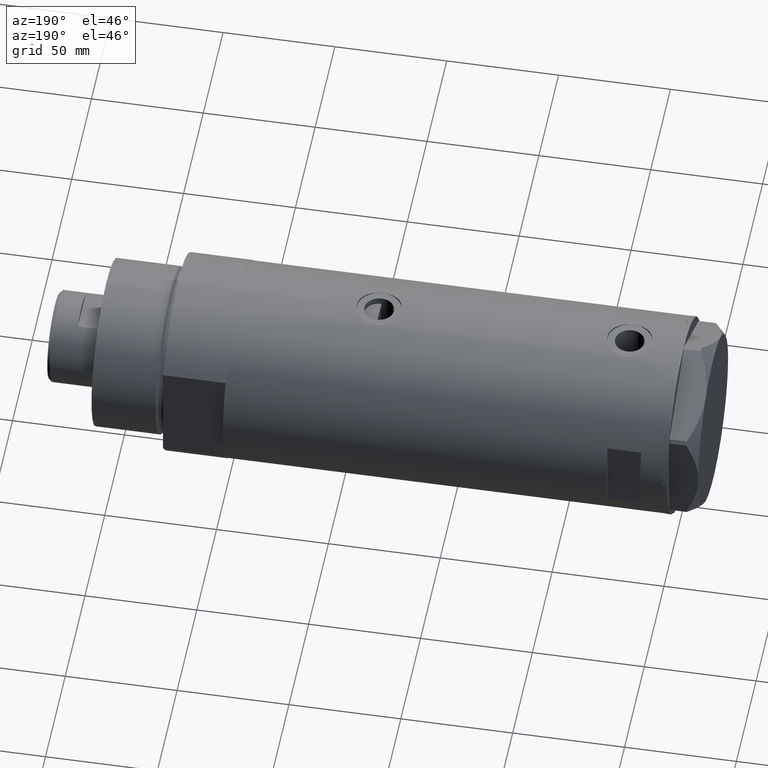
[diagram: clean part render]
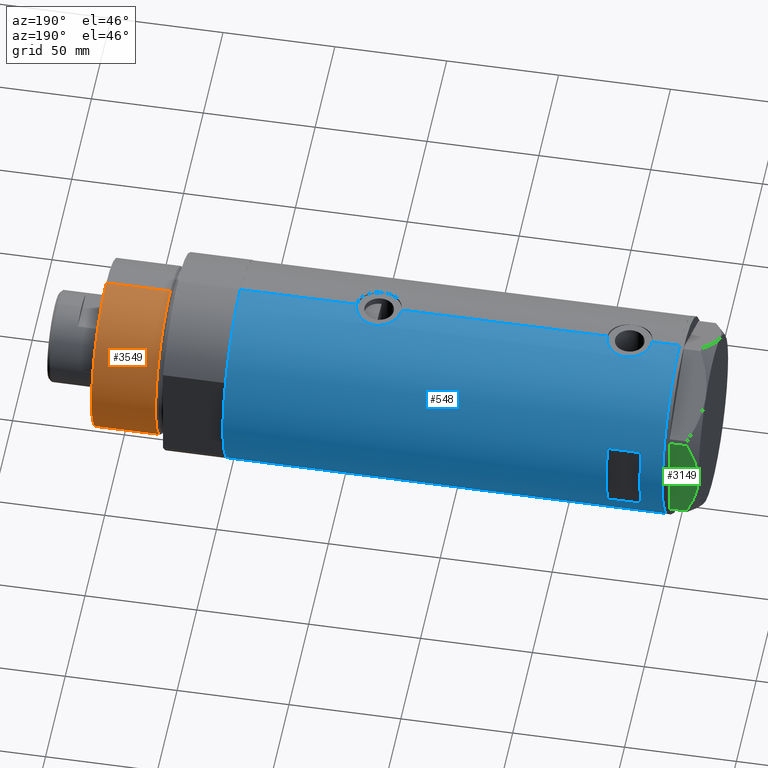
[diagram: same view with three faces highlighted in distinct colors, each labeled with its STEP entity id]
A machine part, auxiliary view with three faces highlighted in distinct colors.
Their STEP definitions:

[orange] entity #3549 — the highlighted cylindrical surface (partial cylindrical patch) has radius 37.5 mm, axis along (-1, -0, 0).
#1 = VECTOR ( 'NONE', #2127, 1000.000000000000000 ) ;
#96 = CYLINDRICAL_SURFACE ( 'NONE', #3648, 37.50000000000000711 ) ;
#368 = AXIS2_PLACEMENT_3D ( 'NONE', #3926, #3854, #2150 ) ;
#413 = CARTESIAN_POINT ( 'NONE',  ( -37.50000000000000711, 0.000000000000000000, 59.89999999999999147 ) ) ;
#499 = ORIENTED_EDGE ( 'NONE', *, *, #2521, .T. ) ;
#593 = VERTEX_POINT ( 'NONE', #413 ) ;
#611 = DIRECTION ( 'NONE',  ( -0.000000000000000000, -0.000000000000000000, -1.000000000000000000 ) ) ;
#630 = CARTESIAN_POINT ( 'NONE',  ( 37.50000000000000711, 4.592425496802575156E-15, 59.89999999999999147 ) ) ;
#1038 = CARTESIAN_POINT ( 'NONE',  ( 37.50000000000000711, 4.592425496802575156E-15, 59.89999999999999147 ) ) ;
#1137 = DIRECTION ( 'NONE',  ( -1.000000000000000000, 0.000000000000000000, 0.000000000000000000 ) ) ;
#1215 = EDGE_CURVE ( 'NONE', #3387, #593, #1767, .T. ) ;
#1767 = CIRCLE ( 'NONE', #368, 37.50000000000000711 ) ;
#1946 = ORIENTED_EDGE ( 'NONE', *, *, #1215, .F. ) ;
#2017 = DIRECTION ( 'NONE',  ( 1.000000000000000000, 0.000000000000000000, 0.000000000000000000 ) ) ;
#2127 = DIRECTION ( 'NONE',  ( -0.000000000000000000, -0.000000000000000000, -1.000000000000000000 ) ) ;
#2130 = DIRECTION ( 'NONE',  ( -0.000000000000000000, -0.000000000000000000, 1.000000000000000000 ) ) ;
#2150 = DIRECTION ( 'NONE',  ( 1.000000000000000000, 0.000000000000000000, 0.000000000000000000 ) ) ;
#2188 = CARTESIAN_POINT ( 'NONE',  ( 37.50000000000000711, 4.592425496802575156E-15, 31.27384048104054415 ) ) ;
#2521 = EDGE_CURVE ( 'NONE', #3387, #3695, #3477, .T. ) ;
#2670 = EDGE_CURVE ( 'NONE', #593, #4209, #3089, .T. ) ;
#2704 = CARTESIAN_POINT ( 'NONE',  ( -37.50000000000000711, 0.000000000000000000, 31.27384048104054415 ) ) ;
#2782 = EDGE_LOOP ( 'NONE', ( #1946, #499, #3844, #3107 ) ) ;
#3089 = LINE ( 'NONE', #3476, #3440 ) ;
#3107 = ORIENTED_EDGE ( 'NONE', *, *, #2670, .F. ) ;
#3256 = FACE_OUTER_BOUND ( 'NONE', #2782, .T. ) ;
#3387 = VERTEX_POINT ( 'NONE', #630 ) ;
#3440 = VECTOR ( 'NONE', #611, 1000.000000000000000 ) ;
#3476 = CARTESIAN_POINT ( 'NONE',  ( -37.50000000000000711, 0.000000000000000000, 59.89999999999999147 ) ) ;
#3477 = LINE ( 'NONE', #1038, #1 ) ;
#3507 = CIRCLE ( 'NONE', #3576, 37.50000000000000711 ) ;
#3549 = ADVANCED_FACE ( 'NONE', ( #3256 ), #96, .T. ) ;
#3576 = AXIS2_PLACEMENT_3D ( 'NONE', #4217, #2130, #2017 ) ;
#3648 = AXIS2_PLACEMENT_3D ( 'NONE', #4349, #4299, #1137 ) ;
#3695 = VERTEX_POINT ( 'NONE', #2188 ) ;
#3844 = ORIENTED_EDGE ( 'NONE', *, *, #4469, .T. ) ;
#3854 = DIRECTION ( 'NONE',  ( 0.000000000000000000, 0.000000000000000000, 1.000000000000000000 ) ) ;
#3926 = CARTESIAN_POINT ( 'NONE',  ( 0.000000000000000000, 0.000000000000000000, 59.89999999999999147 ) ) ;
#4209 = VERTEX_POINT ( 'NONE', #2704 ) ;
#4217 = CARTESIAN_POINT ( 'NONE',  ( 0.000000000000000000, 0.000000000000000000, 31.27384048104054415 ) ) ;
#4299 = DIRECTION ( 'NONE',  ( -0.000000000000000000, -0.000000000000000000, -1.000000000000000000 ) ) ;
#4349 = CARTESIAN_POINT ( 'NONE',  ( 0.000000000000000000, 0.000000000000000000, 59.89999999999999147 ) ) ;
#4469 = EDGE_CURVE ( 'NONE', #3695, #4209, #3507, .T. ) ;

[blue] entity #548 — the highlighted cylindrical surface (partial cylindrical patch) has radius 44 mm, axis along (-1, -0, 0).
#6 = CARTESIAN_POINT ( 'NONE',  ( 44.00000000000002132, 0.6630566900259828866, -46.10000000000002984 ) ) ;
#35 = VECTOR ( 'NONE', #3720, 1000.000000000000000 ) ;
#51 = CARTESIAN_POINT ( 'NONE',  ( 42.99303682946562333, 9.360292926890512177, -39.63424220207205195 ) ) ;
#77 = CIRCLE ( 'NONE', #2585, 44.00000000000000000 ) ;
#78 = CARTESIAN_POINT ( 'NONE',  ( 43.13897484505559987, 8.663345277311671921, -41.10529600060514355 ) ) ;
#87 = CARTESIAN_POINT ( 'NONE',  ( -43.95549163632549750, 2.014511215452028825, -67.83058955704980519 ) ) ;
#101 = LINE ( 'NONE', #753, #4527 ) ;
#128 = CARTESIAN_POINT ( 'NONE',  ( 43.92756755766649235, 2.604528169608121946, -26.42286588097656974 ) ) ;
#136 = CARTESIAN_POINT ( 'NONE',  ( 42.86396777580258544, 9.934664719553397916, 77.21576199026523568 ) ) ;
#141 = CARTESIAN_POINT ( 'NONE',  ( -44.00000000000000000, 4.742435893011557518E-16, 80.45000000000001705 ) ) ;
#144 = ORIENTED_EDGE ( 'NONE', *, *, #2812, .F. ) ;
#158 = CARTESIAN_POINT ( 'NONE',  ( -43.97068415157985299, 1.617901284326948907, -55.85954871699957636 ) ) ;
#162 = CARTESIAN_POINT ( 'NONE',  ( -43.80646232387288563, 4.132500855894024383, 78.90645585403358098 ) ) ;
#173 = DIRECTION ( 'NONE',  ( 0.000000000000000000, 0.000000000000000000, 1.000000000000000000 ) ) ;
#182 = CARTESIAN_POINT ( 'NONE',  ( -43.71901936021025392, 4.969830049220633761, -65.71167637698874842 ) ) ;
#186 = CARTESIAN_POINT ( 'NONE',  ( -43.74805001749254529, 4.711035428619386956, 70.07223935874202425 ) ) ;
#202 = CARTESIAN_POINT ( 'NONE',  ( 44.00000000000000000, -3.917142467416489149E-21, -26.10000000000000497 ) ) ;
#225 = CARTESIAN_POINT ( 'NONE',  ( 43.77939001959705223, 4.442287752090382291, 66.91693822440836925 ) ) ;
#241 = CARTESIAN_POINT ( 'NONE',  ( 0.000000000000000000, 0.000000000000000000, -98.20000000000000284 ) ) ;
#245 = CARTESIAN_POINT ( 'NONE',  ( 43.50382207688846847, 6.605942769308303930, 83.43604688838220795 ) ) ;
#263 = CARTESIAN_POINT ( 'NONE',  ( 43.27871541412905287, 7.937063204555986573, 81.99174997246032603 ) ) ;
#309 = LINE ( 'NONE', #930, #2427 ) ;
#319 = LINE ( 'NONE', #1643, #35 ) ;
#328 = CARTESIAN_POINT ( 'NONE',  ( 43.24261242176996234, 8.130827601038829400, 81.73055186854172405 ) ) ;
#360 = DIRECTION ( 'NONE',  ( 0.000000000000000000, 0.000000000000000000, 1.000000000000000000 ) ) ;
#372 = CARTESIAN_POINT ( 'NONE',  ( 43.46520118248736253, 6.843279251446920064, -43.39898327212166151 ) ) ;
#390 = ORIENTED_EDGE ( 'NONE', *, *, #3769, .F. ) ;
#394 = DIRECTION ( 'NONE',  ( 1.000000000000000000, 0.000000000000000000, 0.000000000000000000 ) ) ;
#415 = ORIENTED_EDGE ( 'NONE', *, *, #1120, .T. ) ;
#417 = CARTESIAN_POINT ( 'NONE',  ( 42.84863276153905787, 9.999733523508369970, -36.75869904750778261 ) ) ;
#425 = CARTESIAN_POINT ( 'NONE',  ( -43.88883895882800346, 3.130924084324098633, -67.31312455748147272 ) ) ;
#442 = CIRCLE ( 'NONE', #1168, 44.00000000000000000 ) ;
#446 = ORIENTED_EDGE ( 'NONE', *, *, #1654, .F. ) ;
#466 = CARTESIAN_POINT ( 'NONE',  ( 43.04652664061919864, 9.111152824375430725, -31.96541990785411969 ) ) ;
#477 = CARTESIAN_POINT ( 'NONE',  ( -43.55386785759471024, 6.249847571481740971, 74.61054947617955690 ) ) ;
#484 = AXIS2_PLACEMENT_3D ( 'NONE', #2975, #3719, #3045 ) ;
#498 = CARTESIAN_POINT ( 'NONE',  ( 43.07641822757289418, 8.969229373860565957, 80.33396235790173989 ) ) ;
#520 = CARTESIAN_POINT ( 'NONE',  ( 42.99303682946563043, 9.360292926890506848, 72.36575779792798357 ) ) ;
#521 = CARTESIAN_POINT ( 'NONE',  ( -43.66575107734169592, 5.414026674167585540, -65.02935088037702371 ) ) ;
#528 = CARTESIAN_POINT ( 'NONE',  ( -43.59867737633045692, 5.931302618788633296, 72.18750504970115855 ) ) ;
#541 = CARTESIAN_POINT ( 'NONE',  ( 43.17277162440354488, 8.493905080221262338, 70.61212964891505806 ) ) ;
#544 = CARTESIAN_POINT ( 'NONE',  ( -43.55382423478827292, 6.250151562062086441, 73.79410470512661391 ) ) ;
#548 = ADVANCED_FACE ( 'NONE', ( #4081, #2344 ), #581, .T. ) ;
#557 = CARTESIAN_POINT ( 'NONE',  ( 43.13962074468733476, 8.660138848900677644, -31.08910258836065665 ) ) ;
#562 = CARTESIAN_POINT ( 'NONE',  ( 42.96879251999280314, 9.470609476412112926, 72.67277100058944939 ) ) ;
#568 = CARTESIAN_POINT ( 'NONE',  ( -43.99417607942194763, 0.8200150578638748522, 80.40936672516741623 ) ) ;
#580 = VERTEX_POINT ( 'NONE', #3144 ) ;
#581 = CYLINDRICAL_SURFACE ( 'NONE', #651, 44.00000000000000000 ) ;
#616 = DIRECTION ( 'NONE',  ( 0.000000000000000000, 0.000000000000000000, 1.000000000000000000 ) ) ;
#651 = AXIS2_PLACEMENT_3D ( 'NONE', #241, #1647, #394 ) ;
#659 = CARTESIAN_POINT ( 'NONE',  ( 43.80640706382536109, 4.134078575915387965, 85.01132821562090669 ) ) ;
#668 = CARTESIAN_POINT ( 'NONE',  ( -44.00000000000000000, 5.388445781992449847E-15, -68.15000000000001990 ) ) ;
#690 = ORIENTED_EDGE ( 'NONE', *, *, #1069, .F. ) ;
#709 = CARTESIAN_POINT ( 'NONE',  ( 43.61291203895919466, 5.829986172017925128, -44.23128710786829743 ) ) ;
#732 = DIRECTION ( 'NONE',  ( 1.000000000000000000, -8.881784197001252323E-16, 0.000000000000000000 ) ) ;
#733 = CARTESIAN_POINT ( 'NONE',  ( -44.00000000000000000, 5.388445916248353619E-15, 98.20000000000000284 ) ) ;
#753 = CARTESIAN_POINT ( 'NONE',  ( 44.00000000000000000, 0.000000000000000000, -98.20000000000000284 ) ) ;
#762 = CARTESIAN_POINT ( 'NONE',  ( -43.83576802966639008, 3.813209221108468938, -66.86865490354712449 ) ) ;
#787 = CARTESIAN_POINT ( 'NONE',  ( -43.55386785759470314, 6.249847571481745412, -61.48945052382045873 ) ) ;
#828 = CARTESIAN_POINT ( 'NONE',  ( 42.92259096922158790, 9.678247830257131312, -33.49994006971207483 ) ) ;
#835 = CARTESIAN_POINT ( 'NONE',  ( 42.96547725528407824, 9.488625330801083280, 79.12450347211071744 ) ) ;
#836 = CARTESIAN_POINT ( 'NONE',  ( -43.97754480947186551, 1.419697478855586059, -55.80996723947924210 ) ) ;
#861 = CARTESIAN_POINT ( 'NONE',  ( -43.62981559643959883, 5.696090409300659019, -64.48051365414528391 ) ) ;
#873 = CIRCLE ( 'NONE', #3471, 44.00000000000000000 ) ;
#876 = CARTESIAN_POINT ( 'NONE',  ( 44.00000000000002132, 0.3269372501759380545, -26.10000000000001918 ) ) ;
#890 = CARTESIAN_POINT ( 'NONE',  ( -43.88968326835893663, 3.132363423941621150, 79.62379232356479974 ) ) ;
#900 = CARTESIAN_POINT ( 'NONE',  ( 43.27871541412904577, 7.937063204555981244, -30.00825002753968107 ) ) ;
#903 = CARTESIAN_POINT ( 'NONE',  ( 43.04663170950395568, 9.110642017076083121, 71.76452497809607678 ) ) ;
#919 = CIRCLE ( 'NONE', #484, 44.00000000000000000 ) ;
#929 = CARTESIAN_POINT ( 'NONE',  ( 43.35257020184194232, 7.523219862841656891, 82.49602554084137296 ) ) ;
#930 = CARTESIAN_POINT ( 'NONE',  ( -15.96871942267132027, 40.99999999999999289, -98.20000000000000284 ) ) ;
#942 = EDGE_CURVE ( 'NONE', #2929, #4059, #2510, .T. ) ;
#1060 = ORIENTED_EDGE ( 'NONE', *, *, #942, .T. ) ;
#1069 = EDGE_CURVE ( 'NONE', #1860, #3044, #309, .T. ) ;
#1072 = CARTESIAN_POINT ( 'NONE',  ( 43.07598348983508174, 8.971306953823013686, -40.52969423187187914 ) ) ;
#1091 = VECTOR ( 'NONE', #4223, 1000.000000000000000 ) ;
#1095 = CARTESIAN_POINT ( 'NONE',  ( 42.96879251999280314, 9.470609476412120031, -39.32722899941056482 ) ) ;
#1098 = DIRECTION ( 'NONE',  ( 0.000000000000000000, 0.000000000000000000, 1.000000000000000000 ) ) ;
#1120 = EDGE_CURVE ( 'NONE', #4243, #580, #442, .T. ) ;
#1134 = CARTESIAN_POINT ( 'NONE',  ( -44.00000000000000000, 5.388445781982983516E-15, 67.95000000000001705 ) ) ;
#1152 = ORIENTED_EDGE ( 'NONE', *, *, #1471, .F. ) ;
#1168 = AXIS2_PLACEMENT_3D ( 'NONE', #4466, #2719, #2020 ) ;
#1172 = CARTESIAN_POINT ( 'NONE',  ( 43.50265731352001808, 6.601850423195591233, 68.38180832701048928 ) ) ;
#1173 = CARTESIAN_POINT ( 'NONE',  ( -43.58221825186232223, 6.049526113783029402, -63.52262970817960763 ) ) ;
#1179 = CARTESIAN_POINT ( 'NONE',  ( -43.95446647384543581, 2.010857111636599637, 80.12124226363938817 ) ) ;
#1184 = EDGE_CURVE ( 'NONE', #3472, #2164, #4187, .T. ) ;
#1191 = CARTESIAN_POINT ( 'NONE',  ( 43.71454618729809738, 5.012329428678962806, -27.44063025941690270 ) ) ;
#1199 = CARTESIAN_POINT ( 'NONE',  ( -43.74833112883975872, 4.708208586952008723, -57.76949616491121731 ) ) ;
#1239 = CARTESIAN_POINT ( 'NONE',  ( 43.98169492814103876, 1.310824514239766536, -26.18080219619315585 ) ) ;
#1244 = CARTESIAN_POINT ( 'NONE',  ( -15.96871942267132027, 40.99999999999999289, 73.20000000000000284 ) ) ;
#1254 = CARTESIAN_POINT ( 'NONE',  ( -43.87596296923810968, 3.305851531861728976, 68.89196414123739487 ) ) ;
#1265 = CARTESIAN_POINT ( 'NONE',  ( 43.50382207688846847, 6.605942769308304818, -28.56395311161779915 ) ) ;
#1270 = CARTESIAN_POINT ( 'NONE',  ( 44.00000000000002132, 0.6630566900259825536, 65.90000000000003411 ) ) ;
#1279 = CARTESIAN_POINT ( 'NONE',  ( -44.00000000000000000, 4.742435893011557518E-16, 80.45000000000001705 ) ) ;
#1297 = EDGE_CURVE ( 'NONE', #3044, #2609, #77, .T. ) ;
#1313 = DIRECTION ( 'NONE',  ( 0.000000000000000000, 0.000000000000000000, 1.000000000000000000 ) ) ;
#1322 = B_SPLINE_CURVE_WITH_KNOTS ( 'NONE', 3,
 ( #1904, #4284, #4000, #836, #158, #3268, #3977, #1502, #2921, #2228, #2252, #1199, #3686, #3636, #1553, #1879, #2617, #3293, #1931, #2943, #2901, #787, #2646, #4336, #1173, #4025, #861, #2177, #521, #3341, #182, #2549, #4392, #762, #3588, #425, #1828, #3247, #87, #1481, #3132, #2039, #668 ),
 .UNSPECIFIED., .F., .F.,
 ( 4, 2, 2, 2, 2, 2, 2, 2, 1, 2, 2, 2, 2, 2, 2, 2, 2, 2, 2, 2, 2, 4 ),
 ( 6.289190293195367850E-19, 0.001222818171749683351, 0.001834227257624524918, 0.002445636343499366702, 0.003668454515249052871, 0.004891272686998739475, 0.006114090858748426512, 0.006725499944623267862, 0.007336909030498110947, 0.007948318116372952297, 0.008559727202247794514, 0.009782545373997478949, 0.01100536354574716165, 0.01222818171749684782, 0.01283959080337170912, 0.01345099988924656868, 0.01467381806099629128, 0.01589663623274601215, 0.01650804531862087518, 0.01711945440449573475, 0.01834227257624545734, 0.01956509074799518341 ),
 .UNSPECIFIED. ) ;
#1366 = CARTESIAN_POINT ( 'NONE',  ( -44.00000000000000000, 5.388445781992449847E-15, -68.15000000000001990 ) ) ;
#1373 = CARTESIAN_POINT ( 'NONE',  ( 0.000000000000000000, 0.000000000000000000, 88.20000000000000284 ) ) ;
#1397 = CARTESIAN_POINT ( 'NONE',  ( 43.94229162222111285, 2.275476993733913655, -45.84314464222307350 ) ) ;
#1416 = CARTESIAN_POINT ( 'NONE',  ( 43.27822890220284080, 7.945655169171516263, -42.20725383289290278 ) ) ;
#1448 = EDGE_LOOP ( 'NONE', ( #690, #390, #3910, #1998 ) ) ;
#1455 = VECTOR ( 'NONE', #2297, 1000.000000000000000 ) ;
#1465 = VECTOR ( 'NONE', #1098, 1000.000000000000000 ) ;
#1471 = EDGE_CURVE ( 'NONE', #4238, #2075, #873, .T. ) ;
#1477 = B_SPLINE_CURVE_WITH_KNOTS ( 'NONE', 3,
 ( #141, #2312, #568, #3693, #3016, #1179, #1976, #3345, #890, #3367, #162, #3298, #4396, #2672, #3321, #2598, #4073, #2328, #1557, #1578, #3388, #477, #544, #4362, #1955, #528, #1884, #1530, #2948, #2287, #1935, #186, #2648, #4415, #1254, #3735, #4341, #4003, #2257, #2361, #2399, #4474, #4113 ),
 .UNSPECIFIED., .F., .F.,
 ( 4, 2, 2, 2, 2, 2, 2, 2, 1, 2, 2, 2, 2, 2, 2, 2, 2, 2, 2, 2, 2, 4 ),
 ( 4.607873388256435088E-19, 0.001222818171749670340, 0.001834227257624505619, 0.002445636343499341114, 0.003668454515249027284, 0.004891272686998713454, 0.006114090858748398756, 0.006725499944623259188, 0.007336909030498119620, 0.007948318116372978318, 0.008559727202247837882, 0.009782545373997518848, 0.01100536354574719981, 0.01222818171749687904, 0.01283959080337173861, 0.01345099988924659644, 0.01467381806099631383, 0.01589663623274603296, 0.01650804531862088906, 0.01711945440449574862, 0.01834227257624546428, 0.01956509074799517994 ),
 .UNSPECIFIED. ) ;
#1481 = CARTESIAN_POINT ( 'NONE',  ( -43.97181775256600389, 1.624866278047417012, -67.94892918385096436 ) ) ;
#1502 = CARTESIAN_POINT ( 'NONE',  ( -43.91413175532568403, 2.773555030353458850, -56.28415761633254277 ) ) ;
#1524 = CARTESIAN_POINT ( 'NONE',  ( 42.92259096922160211, 9.678247830257127760, 78.50005993028796070 ) ) ;
#1530 = CARTESIAN_POINT ( 'NONE',  ( -43.64133398152736021, 5.607447751852152606, 71.43213954987568570 ) ) ;
#1539 = VECTOR ( 'NONE', #173, 1000.000000000000000 ) ;
#1552 = CARTESIAN_POINT ( 'NONE',  ( 43.17306590853067405, 8.492365194390513849, 81.19012532693457729 ) ) ;
#1553 = CARTESIAN_POINT ( 'NONE',  ( -43.66555354895123031, 5.415612800338319488, -58.77343642822444281 ) ) ;
#1557 = CARTESIAN_POINT ( 'NONE',  ( -43.58362292239462477, 6.039157555656595733, 75.82263578448043972 ) ) ;
#1562 = EDGE_CURVE ( 'NONE', #580, #1730, #1984, .T. ) ;
#1578 = CARTESIAN_POINT ( 'NONE',  ( -43.57657963456318839, 6.089610171536606664, 75.62178539580813208 ) ) ;
#1589 = DIRECTION ( 'NONE',  ( 1.000000000000000000, 0.000000000000000000, 0.000000000000000000 ) ) ;
#1643 = CARTESIAN_POINT ( 'NONE',  ( 15.96871942267132027, 40.99999999999999289, -98.20000000000000284 ) ) ;
#1647 = DIRECTION ( 'NONE',  ( 0.000000000000000000, 0.000000000000000000, 1.000000000000000000 ) ) ;
#1654 = EDGE_CURVE ( 'NONE', #1856, #4238, #2633, .T. ) ;
#1720 = CARTESIAN_POINT ( 'NONE',  ( 44.00000000000000711, 0.3269372501759374994, 85.90000000000001990 ) ) ;
#1730 = VERTEX_POINT ( 'NONE', #1366 ) ;
#1763 = VECTOR ( 'NONE', #360, 1000.000000000000000 ) ;
#1772 = CARTESIAN_POINT ( 'NONE',  ( 43.35294442506074120, 7.532526048221052761, -42.70935414491112425 ) ) ;
#1828 = CARTESIAN_POINT ( 'NONE',  ( -43.91315028150559385, 2.769134003554746037, -67.50682619375406546 ) ) ;
#1856 = VERTEX_POINT ( 'NONE', #4408 ) ;
#1860 = VERTEX_POINT ( 'NONE', #1244 ) ;
#1878 = CARTESIAN_POINT ( 'NONE',  ( 43.46520118248735542, 6.843279251446916511, 68.60101672787835980 ) ) ;
#1879 = CARTESIAN_POINT ( 'NONE',  ( -43.64122538274736485, 5.608286354294326870, -59.13388613036661212 ) ) ;
#1884 = CARTESIAN_POINT ( 'NONE',  ( -43.62981559643959883, 5.696090409300652802, 71.61948634585476725 ) ) ;
#1897 = CARTESIAN_POINT ( 'NONE',  ( 43.39051256276903246, 7.301963662770314833, -29.25975531787057804 ) ) ;
#1903 = CARTESIAN_POINT ( 'NONE',  ( 43.88297407487991109, 3.222431612395379119, 66.42771797970659975 ) ) ;
#1904 = CARTESIAN_POINT ( 'NONE',  ( -44.00000000000000000, 6.472851849715296073E-16, -55.65000000000000568 ) ) ;
#1924 = CARTESIAN_POINT ( 'NONE',  ( 43.77712723341632284, 4.432620652875501222, -27.13004990240029457 ) ) ;
#1931 = CARTESIAN_POINT ( 'NONE',  ( -43.58362292239463187, 6.039157555656604615, -60.27736421551959722 ) ) ;
#1935 = CARTESIAN_POINT ( 'NONE',  ( -43.71901936021023971, 4.969830049220626655, 70.38832362301124590 ) ) ;
#1951 = CARTESIAN_POINT ( 'NONE',  ( 43.07598348983507464, 8.971306953823011909, 71.47030576812815639 ) ) ;
#1955 = CARTESIAN_POINT ( 'NONE',  ( -43.58221825186232223, 6.049526113783018744, 72.57737029182041510 ) ) ;
#1972 = CARTESIAN_POINT ( 'NONE',  ( 42.92624534982631701, 9.661626915142809580, 73.29991995855291975 ) ) ;
#1976 = CARTESIAN_POINT ( 'NONE',  ( -43.94507179847653333, 2.206027755801677870, 80.05131522281796208 ) ) ;
#1984 = LINE ( 'NONE', #3446, #1455 ) ;
#1998 = ORIENTED_EDGE ( 'NONE', *, *, #1297, .F. ) ;
#2008 = EDGE_CURVE ( 'NONE', #4203, #2075, #3628, .T. ) ;
#2020 = DIRECTION ( 'NONE',  ( 1.000000000000000000, 0.000000000000000000, 0.000000000000000000 ) ) ;
#2039 = CARTESIAN_POINT ( 'NONE',  ( -44.00000000000000711, 0.4081702738789189655, -68.15000000000003411 ) ) ;
#2075 = VERTEX_POINT ( 'NONE', #733 ) ;
#2095 = CARTESIAN_POINT ( 'NONE',  ( 44.00000000000000000, -2.552687571866728611E-15, 65.90000000000001990 ) ) ;
#2115 = CARTESIAN_POINT ( 'NONE',  ( 43.77939001959705223, 4.442287752090387620, -45.08306177559163075 ) ) ;
#2164 = VERTEX_POINT ( 'NONE', #2095 ) ;
#2166 = CARTESIAN_POINT ( 'NONE',  ( 42.90786968859021044, 9.742642423712174704, -38.37802296547129544 ) ) ;
#2177 = CARTESIAN_POINT ( 'NONE',  ( -43.64133398152736021, 5.607447751852158824, -64.66786045012435125 ) ) ;
#2220 = CARTESIAN_POINT ( 'NONE',  ( -44.00000000000000000, 5.388445916248353619E-15, -98.20000000000000284 ) ) ;
#2227 = CARTESIAN_POINT ( 'NONE',  ( 42.84863276153905787, 9.999733523508361088, 75.24130095249223871 ) ) ;
#2228 = CARTESIAN_POINT ( 'NONE',  ( -43.83593455218809964, 3.811409182021281428, -56.92985072296500704 ) ) ;
#2244 = CARTESIAN_POINT ( 'NONE',  ( 43.68141895191831026, 5.292250119194736868, -27.60895047714807049 ) ) ;
#2251 = CARTESIAN_POINT ( 'NONE',  ( 43.04652664061922707, 9.111152824375430725, 80.03458009214594426 ) ) ;
#2252 = CARTESIAN_POINT ( 'NONE',  ( -43.80646232387289274, 4.132500855894034153, -57.19354414596645597 ) ) ;
#2257 = CARTESIAN_POINT ( 'NONE',  ( -43.95549163632549750, 2.014511215452027937, 68.26941044295020333 ) ) ;
#2268 = B_SPLINE_CURVE_WITH_KNOTS ( 'NONE', 3,
 ( #2616, #1270, #3729, #3999, #3711, #1903, #3684, #225, #2645, #2992, #4391, #1172, #1878, #2282, #2942, #541, #2689, #1951, #903, #520, #562, #1972, #3385, #4084, #2227, #3292, #136, #1524, #835, #2251, #498, #3315, #1552, #328, #263, #929, #2350, #245, #3082, #2392, #3186, #3283, #659, #3545, #4372, #3702, #4452, #2363, #1720, #3181 ),
 .UNSPECIFIED., .F., .F.,
 ( 4, 2, 2, 2, 2, 2, 2, 2, 2, 2, 2, 2, 2, 2, 2, 2, 2, 2, 2, 2, 2, 2, 2, 2, 4 ),
 ( 2.479523669370822448E-18, 0.001960456513248879339, 0.002940684769873313370, 0.003920913026497747401, 0.005881369539746631077, 0.006861597796371071180, 0.007841826052995510415, 0.009802282566244392356, 0.01078251082286883072, 0.01176273907949326909, 0.01274296733611770746, 0.01372319559274214583, 0.01568365210599106593, 0.01764410861923998430, 0.01960456513248890267, 0.02058479338911334278, 0.02156502164573777941, 0.02254524990236221951, 0.02352547815898665615, 0.02548593467223552941, 0.02646616292885996952, 0.02744639118548440615, 0.02940684769873327942, 0.03038707595535771258, 0.03136730421198213881 ),
 .UNSPECIFIED. ) ;
#2273 = CARTESIAN_POINT ( 'NONE',  ( 43.35257020184194232, 7.523219862841651562, -29.50397445915864481 ) ) ;
#2282 = CARTESIAN_POINT ( 'NONE',  ( 43.35294442506074120, 7.532526048221051873, 69.29064585508892549 ) ) ;
#2287 = CARTESIAN_POINT ( 'NONE',  ( -43.67867890111967455, 5.309046579850785541, 70.89577220923978018 ) ) ;
#2297 = DIRECTION ( 'NONE',  ( 0.000000000000000000, 0.000000000000000000, 1.000000000000000000 ) ) ;
#2304 = CARTESIAN_POINT ( 'NONE',  ( 43.17306590853065273, 8.492365194390522731, -30.80987467306545113 ) ) ;
#2312 = CARTESIAN_POINT ( 'NONE',  ( -44.00000000000000711, 0.4135148353567996149, 80.45000000000001705 ) ) ;
#2328 = CARTESIAN_POINT ( 'NONE',  ( -43.59995593514495482, 5.920088975424566691, 76.21417908691780951 ) ) ;
#2344 = FACE_OUTER_BOUND ( 'NONE', #4503, .T. ) ;
#2345 = CARTESIAN_POINT ( 'NONE',  ( 42.84850876528982155, 10.00026482975808051, -35.44941694529577347 ) ) ;
#2350 = CARTESIAN_POINT ( 'NONE',  ( 43.39051256276903246, 7.301963662770311281, 82.74024468212945749 ) ) ;
#2361 = CARTESIAN_POINT ( 'NONE',  ( -43.97181775256600389, 1.624866278047415680, 68.15107081614905837 ) ) ;
#2363 = CARTESIAN_POINT ( 'NONE',  ( 43.99635668041008074, 0.6544833911834539997, 85.88400708477533385 ) ) ;
#2392 = CARTESIAN_POINT ( 'NONE',  ( 43.68141895191831736, 5.292250119194734204, 84.39104952285195793 ) ) ;
#2399 = CARTESIAN_POINT ( 'NONE',  ( -43.99413512814552263, 0.8228129877960659311, 67.99091685674179075 ) ) ;
#2427 = VECTOR ( 'NONE', #1313, 1000.000000000000000 ) ;
#2470 = CARTESIAN_POINT ( 'NONE',  ( 43.71659050864931828, 5.015880325000608764, -44.77566825963823050 ) ) ;
#2493 = CARTESIAN_POINT ( 'NONE',  ( 43.04663170950394857, 9.110642017076081345, -40.23547502190394454 ) ) ;
#2510 = LINE ( 'NONE', #3913, #1763 ) ;
#2517 = CARTESIAN_POINT ( 'NONE',  ( 43.17277162440355198, 8.493905080221264114, -41.38787035108497037 ) ) ;
#2549 = CARTESIAN_POINT ( 'NONE',  ( -43.74805001749253819, 4.711035428619393173, -66.02776064125799849 ) ) ;
#2563 = CARTESIAN_POINT ( 'NONE',  ( 44.00000000000000000, -3.917142467416489149E-21, -26.10000000000000497 ) ) ;
#2585 = AXIS2_PLACEMENT_3D ( 'NONE', #1373, #3899, #732 ) ;
#2598 = CARTESIAN_POINT ( 'NONE',  ( -43.64122538274737195, 5.608286354294323317, 76.96611386963340351 ) ) ;
#2607 = EDGE_CURVE ( 'NONE', #2929, #1730, #1322, .T. ) ;
#2609 = VERTEX_POINT ( 'NONE', #3497 ) ;
#2616 = CARTESIAN_POINT ( 'NONE',  ( 44.00000000000000000, -2.552687571866728611E-15, 65.90000000000001990 ) ) ;
#2617 = CARTESIAN_POINT ( 'NONE',  ( -43.61859254253774054, 5.782454868881357513, -59.50213599105533291 ) ) ;
#2633 = LINE ( 'NONE', #2836, #1091 ) ;
#2638 = CARTESIAN_POINT ( 'NONE',  ( 42.96547725528407113, 9.488625330801086832, -32.87549652788927546 ) ) ;
#2645 = CARTESIAN_POINT ( 'NONE',  ( 43.71659050864931828, 5.015880325000608764, 67.22433174036180503 ) ) ;
#2646 = CARTESIAN_POINT ( 'NONE',  ( -43.55382423478827292, 6.250151562062090882, -62.30589529487338041 ) ) ;
#2648 = CARTESIAN_POINT ( 'NONE',  ( -43.80687348212602217, 4.128385987736833407, 69.48951256689038303 ) ) ;
#2672 = CARTESIAN_POINT ( 'NONE',  ( -43.67863969133946966, 5.309394106110037370, 77.50379296502549664 ) ) ;
#2689 = CARTESIAN_POINT ( 'NONE',  ( 43.13897484505560698, 8.663345277311673698, 70.89470399939492040 ) ) ;
#2719 = DIRECTION ( 'NONE',  ( 0.000000000000000000, 0.000000000000000000, 1.000000000000000000 ) ) ;
#2756 = B_SPLINE_CURVE_WITH_KNOTS ( 'NONE', 3,
 ( #3170, #6, #3604, #1397, #3547, #3211, #4204, #2115, #2470, #709, #3528, #4262, #372, #1772, #1416, #2517, #78, #1072, #2493, #51, #1095, #3921, #2166, #3577, #417, #2345, #4017, #828, #2638, #466, #4041, #557, #2304, #3033, #900, #2273, #1897, #1265, #3705, #2244, #1191, #1924, #3357, #3724, #128, #2985, #1239, #4381, #876, #202 ),
 .UNSPECIFIED., .F., .F.,
 ( 4, 2, 2, 2, 2, 2, 2, 2, 2, 2, 2, 2, 2, 2, 2, 2, 2, 2, 2, 2, 2, 2, 2, 2, 4 ),
 ( 2.755634020688765633E-18, 0.001960456513248879772, 0.002940684769873318574, 0.003920913026497756942, 0.005881369539746635414, 0.006861597796371073782, 0.007841826052995512150, 0.009802282566244404499, 0.01078251082286885675, 0.01176273907949330899, 0.01274296733611776297, 0.01372319559274221522, 0.01568365210599110063, 0.01764410861923998777, 0.01960456513248886798, 0.02058479338911332196, 0.02156502164573776553, 0.02254524990236220564, 0.02352547815898664574, 0.02548593467223553288, 0.02646616292885997299, 0.02744639118548441656, 0.02940684769873329329, 0.03038707595535772993, 0.03136730421198216656 ),
 .UNSPECIFIED. ) ;
#2812 = EDGE_CURVE ( 'NONE', #2164, #1856, #2268, .T. ) ;
#2836 = CARTESIAN_POINT ( 'NONE',  ( 44.00000000000000000, 0.000000000000000000, -98.20000000000000284 ) ) ;
#2901 = CARTESIAN_POINT ( 'NONE',  ( -43.55963022497232373, 6.210088036293401004, -61.08353836982577434 ) ) ;
#2918 = EDGE_CURVE ( 'NONE', #4243, #4481, #101, .T. ) ;
#2921 = CARTESIAN_POINT ( 'NONE',  ( -43.88968326835893663, 3.132363423941624259, -56.47620767643520168 ) ) ;
#2929 = VERTEX_POINT ( 'NONE', #3898 ) ;
#2942 = CARTESIAN_POINT ( 'NONE',  ( 43.27822890220284791, 7.945655169171516263, 69.79274616710709722 ) ) ;
#2943 = CARTESIAN_POINT ( 'NONE',  ( -43.57657963456318839, 6.089610171536609329, -60.47821460419189066 ) ) ;
#2948 = CARTESIAN_POINT ( 'NONE',  ( -43.66575107734168171, 5.414026674167576658, 71.07064911962299902 ) ) ;
#2974 = EDGE_CURVE ( 'NONE', #4481, #3472, #2756, .T. ) ;
#2975 = CARTESIAN_POINT ( 'NONE',  ( 0.000000000000000000, 0.000000000000000000, 73.20000000000018758 ) ) ;
#2985 = CARTESIAN_POINT ( 'NONE',  ( 43.97062489912107708, 1.639461988184801156, -26.22985373334014625 ) ) ;
#2992 = CARTESIAN_POINT ( 'NONE',  ( 43.61291203895921598, 5.829986172017926016, 67.76871289213170257 ) ) ;
#3016 = CARTESIAN_POINT ( 'NONE',  ( -43.97068415157983878, 1.617901284326946909, 80.24045128300046770 ) ) ;
#3033 = CARTESIAN_POINT ( 'NONE',  ( 43.24261242176996234, 8.130827601038834729, -30.26944813145831148 ) ) ;
#3044 = VERTEX_POINT ( 'NONE', #3046 ) ;
#3045 = DIRECTION ( 'NONE',  ( 0.000000000000000000, 1.000000000000000000, -4.731064025391292434E-15 ) ) ;
#3046 = CARTESIAN_POINT ( 'NONE',  ( -15.96871942267132027, 40.99999999999999289, 88.20000000000000284 ) ) ;
#3082 = CARTESIAN_POINT ( 'NONE',  ( 43.57805684119164624, 6.103282219787165452, 83.84816201647861078 ) ) ;
#3120 = ORIENTED_EDGE ( 'NONE', *, *, #1184, .F. ) ;
#3132 = CARTESIAN_POINT ( 'NONE',  ( -43.99413512814552263, 0.8228129877960710381, -68.10908314325826041 ) ) ;
#3144 = CARTESIAN_POINT ( 'NONE',  ( -44.00000000000000000, 5.388445916248353619E-15, -98.20000000000000284 ) ) ;
#3170 = CARTESIAN_POINT ( 'NONE',  ( 44.00000000000000000, 2.836945177865671897E-15, -46.10000000000000853 ) ) ;
#3172 = VERTEX_POINT ( 'NONE', #4509 ) ;
#3181 = CARTESIAN_POINT ( 'NONE',  ( 44.00000000000000000, -3.917104602093038540E-21, 85.90000000000000568 ) ) ;
#3186 = CARTESIAN_POINT ( 'NONE',  ( 43.71454618729810448, 5.012329428678959253, 84.55936974058313638 ) ) ;
#3188 = DIRECTION ( 'NONE',  ( 0.000000000000000000, 0.000000000000000000, 1.000000000000000000 ) ) ;
#3192 = CARTESIAN_POINT ( 'NONE',  ( 44.00000000000000000, 0.000000000000000000, -98.20000000000000284 ) ) ;
#3211 = CARTESIAN_POINT ( 'NONE',  ( 43.88297407487991109, 3.222431612395382228, -45.57228202029342157 ) ) ;
#3242 = CARTESIAN_POINT ( 'NONE',  ( 44.00000000000000000, 0.000000000000000000, -98.20000000000000284 ) ) ;
#3247 = CARTESIAN_POINT ( 'NONE',  ( -43.92459115390705193, 2.581892149021001615, -67.59545827073348789 ) ) ;
#3254 = ORIENTED_EDGE ( 'NONE', *, *, #1562, .T. ) ;
#3268 = CARTESIAN_POINT ( 'NONE',  ( -43.95446647384544292, 2.010857111636600969, -55.97875773636064878 ) ) ;
#3283 = CARTESIAN_POINT ( 'NONE',  ( 43.77712723341632994, 4.432620652875498557, 84.86995009759974096 ) ) ;
#3292 = CARTESIAN_POINT ( 'NONE',  ( 42.84850876528983576, 10.00026482975808229, 76.55058305470424784 ) ) ;
#3293 = CARTESIAN_POINT ( 'NONE',  ( -43.59995593514495482, 5.920088975424572908, -59.88582091308221322 ) ) ;
#3298 = CARTESIAN_POINT ( 'NONE',  ( -43.74833112883977293, 4.708208586952001617, 78.33050383508880543 ) ) ;
#3315 = CARTESIAN_POINT ( 'NONE',  ( 43.13962074468734897, 8.660138848900670538, 80.91089741163936822 ) ) ;
#3317 = EDGE_CURVE ( 'NONE', #2609, #3172, #319, .T. ) ;
#3321 = CARTESIAN_POINT ( 'NONE',  ( -43.66555354895124452, 5.415612800338318600, 77.32656357177557993 ) ) ;
#3341 = CARTESIAN_POINT ( 'NONE',  ( -43.67867890111968876, 5.309046579850795311, -65.20422779076025677 ) ) ;
#3345 = CARTESIAN_POINT ( 'NONE',  ( -43.91413175532567692, 2.773555030353453965, 79.81584238366747286 ) ) ;
#3357 = CARTESIAN_POINT ( 'NONE',  ( 43.80640706382535399, 4.134078575915393294, -26.98867178437913239 ) ) ;
#3367 = CARTESIAN_POINT ( 'NONE',  ( -43.83593455218809254, 3.811409182021277431, 79.17014927703502281 ) ) ;
#3385 = CARTESIAN_POINT ( 'NONE',  ( 42.90786968859021044, 9.742642423712171151, 73.62197703452876851 ) ) ;
#3388 = CARTESIAN_POINT ( 'NONE',  ( -43.55963022497231663, 6.210088036293396563, 75.01646163017424840 ) ) ;
#3392 = ORIENTED_EDGE ( 'NONE', *, *, #2008, .T. ) ;
#3399 = CARTESIAN_POINT ( 'NONE',  ( 0.000000000000000000, 0.000000000000000000, 98.20000000000000284 ) ) ;
#3446 = CARTESIAN_POINT ( 'NONE',  ( -44.00000000000000000, 5.388445916248353619E-15, -98.20000000000000284 ) ) ;
#3471 = AXIS2_PLACEMENT_3D ( 'NONE', #3399, #616, #1589 ) ;
#3472 = VERTEX_POINT ( 'NONE', #2563 ) ;
#3497 = CARTESIAN_POINT ( 'NONE',  ( 15.96871942267132027, 40.99999999999999289, 88.20000000000000284 ) ) ;
#3528 = CARTESIAN_POINT ( 'NONE',  ( 43.57657781376907025, 6.094873943596692101, -44.03474301119596390 ) ) ;
#3545 = CARTESIAN_POINT ( 'NONE',  ( 43.88561577393361546, 3.228056721358708359, 85.38721665727824472 ) ) ;
#3547 = CARTESIAN_POINT ( 'NONE',  ( 43.92466059386730137, 2.593004216484785740, -45.76356669671356059 ) ) ;
#3577 = CARTESIAN_POINT ( 'NONE',  ( 42.86370458161098185, 9.935807968041572735, -37.40904550429866049 ) ) ;
#3588 = CARTESIAN_POINT ( 'NONE',  ( -43.87596296923811678, 3.305851531861740522, -67.20803585876262787 ) ) ;
#3604 = CARTESIAN_POINT ( 'NONE',  ( 43.98503110884232825, 1.314607393679877445, -46.03470984345550221 ) ) ;
#3609 = CARTESIAN_POINT ( 'NONE',  ( 44.00000000000000000, 0.000000000000000000, 98.20000000000000284 ) ) ;
#3628 = LINE ( 'NONE', #2220, #1539 ) ;
#3636 = CARTESIAN_POINT ( 'NONE',  ( -43.67863969133946256, 5.309394106110041811, -58.59620703497452610 ) ) ;
#3684 = CARTESIAN_POINT ( 'NONE',  ( 43.85884410404901246, 3.534688330930384925, 66.53980191249667087 ) ) ;
#3686 = CARTESIAN_POINT ( 'NONE',  ( -43.71938389712227035, 4.966728892888067293, -58.08385547659131021 ) ) ;
#3693 = CARTESIAN_POINT ( 'NONE',  ( -43.97754480947185129, 1.419697478855583617, 80.29003276052073090 ) ) ;
#3702 = CARTESIAN_POINT ( 'NONE',  ( 43.97062489912108418, 1.639461988184795604, 85.77014626665985020 ) ) ;
#3705 = CARTESIAN_POINT ( 'NONE',  ( 43.57805684119164624, 6.103282219787168117, -28.15183798352141054 ) ) ;
#3711 = CARTESIAN_POINT ( 'NONE',  ( 43.92466059386729427, 2.593004216484783964, 66.23643330328646073 ) ) ;
#3719 = DIRECTION ( 'NONE',  ( 0.000000000000000000, 4.625929269271481378E-15, 1.000000000000000000 ) ) ;
#3720 = DIRECTION ( 'NONE',  ( -0.000000000000000000, -0.000000000000000000, -1.000000000000000000 ) ) ;
#3724 = CARTESIAN_POINT ( 'NONE',  ( 43.88561577393361546, 3.228056721358710135, -26.61278334272174817 ) ) ;
#3729 = CARTESIAN_POINT ( 'NONE',  ( 43.98503110884232115, 1.314607393679875669, 65.96529015654452621 ) ) ;
#3735 = CARTESIAN_POINT ( 'NONE',  ( -43.88883895882799635, 3.130924084324101297, 68.78687544251856423 ) ) ;
#3739 = ORIENTED_EDGE ( 'NONE', *, *, #2607, .F. ) ;
#3769 = EDGE_CURVE ( 'NONE', #3172, #1860, #919, .T. ) ;
#3898 = CARTESIAN_POINT ( 'NONE',  ( -44.00000000000000000, 6.472851849715296073E-16, -55.65000000000000568 ) ) ;
#3899 = DIRECTION ( 'NONE',  ( -0.000000000000000000, -0.000000000000000000, -1.000000000000000000 ) ) ;
#3910 = ORIENTED_EDGE ( 'NONE', *, *, #3317, .F. ) ;
#3913 = CARTESIAN_POINT ( 'NONE',  ( -44.00000000000000000, 5.388445916248353619E-15, -98.20000000000000284 ) ) ;
#3921 = CARTESIAN_POINT ( 'NONE',  ( 42.92624534982631701, 9.661626915142814909, -38.70008004144708735 ) ) ;
#3977 = CARTESIAN_POINT ( 'NONE',  ( -43.94507179847653333, 2.206027755801681867, -56.04868477718203224 ) ) ;
#3999 = CARTESIAN_POINT ( 'NONE',  ( 43.94229162222111285, 2.275476993733910547, 66.15685535777693360 ) ) ;
#4000 = CARTESIAN_POINT ( 'NONE',  ( -43.99417607942193342, 0.8200150578638759624, -55.69063327483257808 ) ) ;
#4003 = CARTESIAN_POINT ( 'NONE',  ( -43.92459115390705193, 2.581892149020998950, 68.50454172926654905 ) ) ;
#4017 = CARTESIAN_POINT ( 'NONE',  ( 42.86396777580258544, 9.934664719553399692, -34.78423800973479274 ) ) ;
#4025 = CARTESIAN_POINT ( 'NONE',  ( -43.59867737633045692, 5.931302618788640402, -63.91249495029889260 ) ) ;
#4041 = CARTESIAN_POINT ( 'NONE',  ( 43.07641822757289418, 8.969229373860574839, -31.66603764209828498 ) ) ;
#4059 = VERTEX_POINT ( 'NONE', #1134 ) ;
#4073 = CARTESIAN_POINT ( 'NONE',  ( -43.61859254253774054, 5.782454868881351295, 76.59786400894466851 ) ) ;
#4081 = FACE_BOUND ( 'NONE', #1448, .T. ) ;
#4084 = CARTESIAN_POINT ( 'NONE',  ( 42.86370458161099606, 9.935807968041567406, 74.59095449570133951 ) ) ;
#4108 = EDGE_CURVE ( 'NONE', #4203, #4059, #1477, .T. ) ;
#4113 = CARTESIAN_POINT ( 'NONE',  ( -44.00000000000000000, 5.388445781982983516E-15, 67.95000000000001705 ) ) ;
#4187 = LINE ( 'NONE', #3242, #1465 ) ;
#4203 = VERTEX_POINT ( 'NONE', #1279 ) ;
#4204 = CARTESIAN_POINT ( 'NONE',  ( 43.85884410404901246, 3.534688330930388922, -45.46019808750336466 ) ) ;
#4223 = DIRECTION ( 'NONE',  ( 0.000000000000000000, 0.000000000000000000, 1.000000000000000000 ) ) ;
#4224 = ORIENTED_EDGE ( 'NONE', *, *, #2918, .F. ) ;
#4238 = VERTEX_POINT ( 'NONE', #3609 ) ;
#4243 = VERTEX_POINT ( 'NONE', #3192 ) ;
#4262 = CARTESIAN_POINT ( 'NONE',  ( 43.50265731352001097, 6.601850423195605444, -43.61819167298953914 ) ) ;
#4284 = CARTESIAN_POINT ( 'NONE',  ( -44.00000000000000000, 0.4135148353567994484, -55.64999999999999858 ) ) ;
#4336 = CARTESIAN_POINT ( 'NONE',  ( -43.55973179376098869, 6.209370339246239823, -62.72061767059870618 ) ) ;
#4341 = CARTESIAN_POINT ( 'NONE',  ( -43.91315028150560096, 2.769134003554746482, 68.59317380624599991 ) ) ;
#4362 = CARTESIAN_POINT ( 'NONE',  ( -43.55973179376100290, 6.209370339246232717, 73.37938232940132366 ) ) ;
#4372 = CARTESIAN_POINT ( 'NONE',  ( 43.92756755766649235, 2.604528169608113064, 85.57713411902345513 ) ) ;
#4381 = CARTESIAN_POINT ( 'NONE',  ( 43.99635668041006653, 0.6544833911834557760, -26.11599291522469457 ) ) ;
#4391 = CARTESIAN_POINT ( 'NONE',  ( 43.57657781376909156, 6.094873943596678778, 67.96525698880405741 ) ) ;
#4392 = CARTESIAN_POINT ( 'NONE',  ( -43.80687348212602217, 4.128385987736840512, -66.61048743310966813 ) ) ;
#4396 = CARTESIAN_POINT ( 'NONE',  ( -43.71938389712227746, 4.966728892888062852, 78.01614452340872674 ) ) ;
#4408 = CARTESIAN_POINT ( 'NONE',  ( 44.00000000000000000, -3.917104602093038540E-21, 85.90000000000000568 ) ) ;
#4415 = CARTESIAN_POINT ( 'NONE',  ( -43.83576802966640429, 3.813209221108459168, 69.23134509645289825 ) ) ;
#4452 = CARTESIAN_POINT ( 'NONE',  ( 43.98169492814103165, 1.310824514239766536, 85.81919780380685836 ) ) ;
#4462 = ORIENTED_EDGE ( 'NONE', *, *, #4108, .F. ) ;
#4466 = CARTESIAN_POINT ( 'NONE',  ( 0.000000000000000000, 0.000000000000000000, -98.20000000000000284 ) ) ;
#4474 = CARTESIAN_POINT ( 'NONE',  ( -43.99999999999997158, 0.4081702738789203533, 67.94999999999997442 ) ) ;
#4481 = VERTEX_POINT ( 'NONE', #4482 ) ;
#4482 = CARTESIAN_POINT ( 'NONE',  ( 44.00000000000000000, 2.836945177865671897E-15, -46.10000000000000853 ) ) ;
#4503 = EDGE_LOOP ( 'NONE', ( #415, #3254, #3739, #1060, #4462, #3392, #1152, #446, #144, #3120, #4550, #4224 ) ) ;
#4509 = CARTESIAN_POINT ( 'NONE',  ( 15.96871942267132027, 40.99999999999999289, 73.20000000000000284 ) ) ;
#4527 = VECTOR ( 'NONE', #3188, 1000.000000000000000 ) ;
#4550 = ORIENTED_EDGE ( 'NONE', *, *, #2974, .F. ) ;

[green] entity #3149 — the highlighted planar face has unit normal (0, -1, -0).
#249 = ORIENTED_EDGE ( 'NONE', *, *, #1865, .F. ) ;
#261 = VECTOR ( 'NONE', #1185, 1000.000000000000000 ) ;
#307 = DIRECTION ( 'NONE',  ( -4.775569585389645902E-16, 1.000000000000000000, 0.000000000000000000 ) ) ;
#391 = CARTESIAN_POINT ( 'NONE',  ( 37.75000000000001421, -19.06473524669325315, 8.482612457517156201 ) ) ;
#396 = VERTEX_POINT ( 'NONE', #4455 ) ;
#424 = PLANE ( 'NONE',  #1726 ) ;
#431 = CARTESIAN_POINT ( 'NONE',  ( 37.75000000000002132, -20.67497266190837024, 7.709124142616982311 ) ) ;
#445 = CARTESIAN_POINT ( 'NONE',  ( 37.75000000000000711, 12.34877760086738441, 11.06613894200179260 ) ) ;
#644 = VECTOR ( 'NONE', #307, 1000.000000000000000 ) ;
#653 = CARTESIAN_POINT ( 'NONE',  ( 37.75000000000000711, 1.802777518484591547E-14, 13.00000000000000000 ) ) ;
#739 = EDGE_LOOP ( 'NONE', ( #1277, #3573, #1913, #4001, #249 ) ) ;
#749 = CARTESIAN_POINT ( 'NONE',  ( 37.75000000000000711, 1.802777518484591547E-14, 13.00000000000000000 ) ) ;
#782 = CARTESIAN_POINT ( 'NONE',  ( 37.75000000000000000, 1.811728074765807994, 12.96720910498919466 ) ) ;
#946 = CARTESIAN_POINT ( 'NONE',  ( 37.75000000000002132, -21.79497266190837124, 0.000000000000000000 ) ) ;
#1133 = VERTEX_POINT ( 'NONE', #4505 ) ;
#1144 = CARTESIAN_POINT ( 'NONE',  ( 37.75000000000000000, 19.86857906850807964, 8.096480699986591034 ) ) ;
#1185 = DIRECTION ( 'NONE',  ( 0.000000000000000000, 0.000000000000000000, -1.000000000000000000 ) ) ;
#1277 = ORIENTED_EDGE ( 'NONE', *, *, #4066, .F. ) ;
#1536 = CARTESIAN_POINT ( 'NONE',  ( 37.75000000000002132, -20.67497266190835958, 13.00000000000000000 ) ) ;
#1726 = AXIS2_PLACEMENT_3D ( 'NONE', #3556, #3498, #4548 ) ;
#1847 = CARTESIAN_POINT ( 'NONE',  ( 37.75000000000002132, -20.67497266190837024, 7.709124142616982311 ) ) ;
#1851 = CARTESIAN_POINT ( 'NONE',  ( 37.75000000000000000, 14.04742653794396823, 10.50092616350622166 ) ) ;
#1865 = EDGE_CURVE ( 'NONE', #3823, #3411, #4232, .T. ) ;
#1901 = EDGE_CURVE ( 'NONE', #1133, #396, #4102, .T. ) ;
#1913 = ORIENTED_EDGE ( 'NONE', *, *, #1901, .T. ) ;
#2152 = FACE_OUTER_BOUND ( 'NONE', #739, .T. ) ;
#2161 = CARTESIAN_POINT ( 'NONE',  ( 37.75000000000000000, 20.67497266190835958, 13.00000000000000000 ) ) ;
#2196 = CARTESIAN_POINT ( 'NONE',  ( 37.75000000000000711, 8.905753572404311313, 11.99914237172014353 ) ) ;
#2213 = CARTESIAN_POINT ( 'NONE',  ( 37.75000000000002132, -17.42329546264822682, 9.202188366597432889 ) ) ;
#2224 = CARTESIAN_POINT ( 'NONE',  ( 37.75000000000000711, 4.503994958793054337, 12.74237531377021604 ) ) ;
#2247 = CARTESIAN_POINT ( 'NONE',  ( 37.75000000000000711, 3.611424898442247233, 12.83826937481875596 ) ) ;
#2512 = CARTESIAN_POINT ( 'NONE',  ( 37.75000000000001421, -12.33018559404072256, 11.04557586999680296 ) ) ;
#2558 = CARTESIAN_POINT ( 'NONE',  ( 37.75000000000002132, -14.04433099034386778, 10.48027127384610679 ) ) ;
#2664 = CARTESIAN_POINT ( 'NONE',  ( 37.75000000000000711, 0.9015134592203699615, 12.99999999999999112 ) ) ;
#2838 = LINE ( 'NONE', #2161, #3438 ) ;
#2884 = CARTESIAN_POINT ( 'NONE',  ( 37.75000000000000711, -7.143641079404811300, 12.47474846747315347 ) ) ;
#2907 = DIRECTION ( 'NONE',  ( 0.000000000000000000, 0.000000000000000000, 1.000000000000000000 ) ) ;
#2916 = CARTESIAN_POINT ( 'NONE',  ( 37.75000000000000000, 19.05362936076134162, 8.470554105526112210 ) ) ;
#3141 = B_SPLINE_CURVE_WITH_KNOTS ( 'NONE', 3,
 ( #431, #391, #2213, #4251, #2558, #2512, #3622, #2884, #3915, #749 ),
 .UNSPECIFIED., .F., .F.,
 ( 4, 2, 2, 2, 4 ),
 ( 0.05601050456479946676, 0.06138217239161374711, 0.06406800630502089422, 0.06675384021842803439, 0.07749717587205659508 ),
 .UNSPECIFIED. ) ;
#3149 = ADVANCED_FACE ( 'NONE', ( #2152 ), #424, .F. ) ;
#3229 = LINE ( 'NONE', #1536, #261 ) ;
#3263 = CARTESIAN_POINT ( 'NONE',  ( 37.75000000000000000, 17.40390235304479560, 9.187919079516760235 ) ) ;
#3308 = CARTESIAN_POINT ( 'NONE',  ( 37.75000000000000000, 20.67497266190835958, 7.709124142616976094 ) ) ;
#3312 = CARTESIAN_POINT ( 'NONE',  ( 37.75000000000000711, 16.56731140591521978, 9.531835068628826235 ) ) ;
#3411 = VERTEX_POINT ( 'NONE', #3308 ) ;
#3438 = VECTOR ( 'NONE', #2907, 1000.000000000000000 ) ;
#3498 = DIRECTION ( 'NONE',  ( -1.000000000000000000, -4.775569585389645902E-16, 0.000000000000000000 ) ) ;
#3521 = VERTEX_POINT ( 'NONE', #1847 ) ;
#3556 = CARTESIAN_POINT ( 'NONE',  ( 37.75000000000002132, -21.79497266190837124, 13.00000000000000000 ) ) ;
#3573 = ORIENTED_EDGE ( 'NONE', *, *, #3651, .T. ) ;
#3622 = CARTESIAN_POINT ( 'NONE',  ( 37.75000000000002132, -11.46926194450820802, 11.30493988086502632 ) ) ;
#3633 = CARTESIAN_POINT ( 'NONE',  ( 37.75000000000000000, 20.67497266190835958, 7.709124142616976094 ) ) ;
#3651 = EDGE_CURVE ( 'NONE', #3521, #1133, #3229, .T. ) ;
#3656 = CARTESIAN_POINT ( 'NONE',  ( 37.75000000000000000, 7.161343005612795132, 12.36677985830370829 ) ) ;
#3823 = VERTEX_POINT ( 'NONE', #653 ) ;
#3915 = CARTESIAN_POINT ( 'NONE',  ( 37.75000000000000000, -3.615248338761618552, 12.99999999999998934 ) ) ;
#3972 = CARTESIAN_POINT ( 'NONE',  ( 37.75000000000000711, 1.802777518484591547E-14, 13.00000000000000000 ) ) ;
#3980 = EDGE_CURVE ( 'NONE', #396, #3411, #2838, .T. ) ;
#4001 = ORIENTED_EDGE ( 'NONE', *, *, #3980, .T. ) ;
#4066 = EDGE_CURVE ( 'NONE', #3521, #3823, #3141, .T. ) ;
#4102 = LINE ( 'NONE', #946, #644 ) ;
#4232 = B_SPLINE_CURVE_WITH_KNOTS ( 'NONE', 3,
 ( #3972, #2664, #782, #2247, #2224, #3656, #2196, #445, #1851, #3312, #3263, #2916, #1144, #3633 ),
 .UNSPECIFIED., .F., .F.,
 ( 4, 2, 2, 2, 2, 2, 4 ),
 ( 0.07749717587205659508, 0.08017617902235897598, 0.08285518217266137075, 0.08821318847326614643, 0.09357119477387092210, 0.09625019792417330300, 0.09892920107447569777 ),
 .UNSPECIFIED. ) ;
#4251 = CARTESIAN_POINT ( 'NONE',  ( 37.75000000000001421, -14.89874562435959504, 10.17375260246623547 ) ) ;
#4455 = CARTESIAN_POINT ( 'NONE',  ( 37.75000000000000000, 20.67497266190835958, 0.000000000000000000 ) ) ;
#4505 = CARTESIAN_POINT ( 'NONE',  ( 37.75000000000002132, -20.67497266190835958, 0.000000000000000000 ) ) ;
#4548 = DIRECTION ( 'NONE',  ( 4.775569585389645902E-16, -1.000000000000000000, 0.000000000000000000 ) ) ;